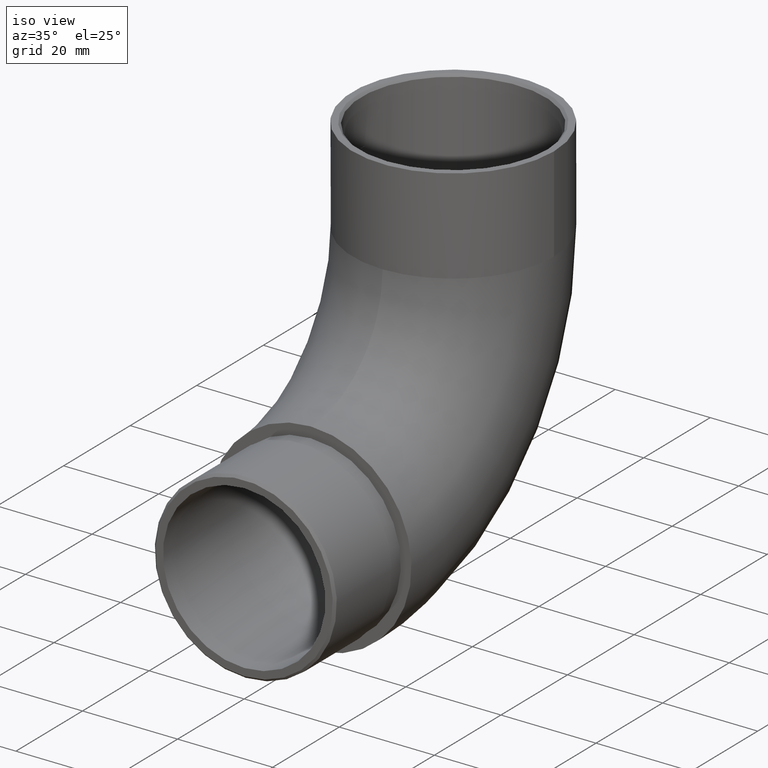
[diagram: clean part render]
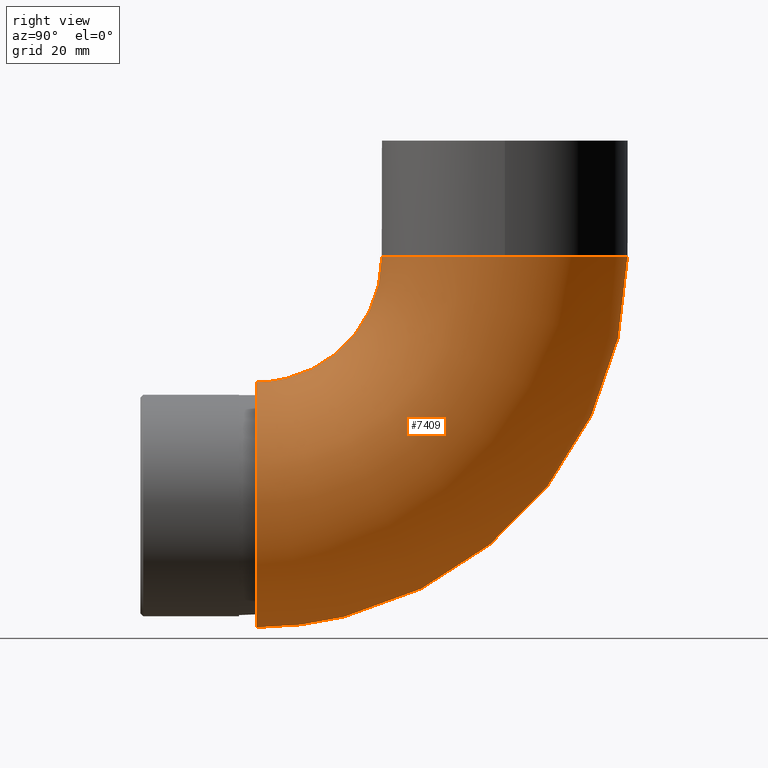
[diagram: tour spotlight — one face highlighted and labeled with its STEP entity id]
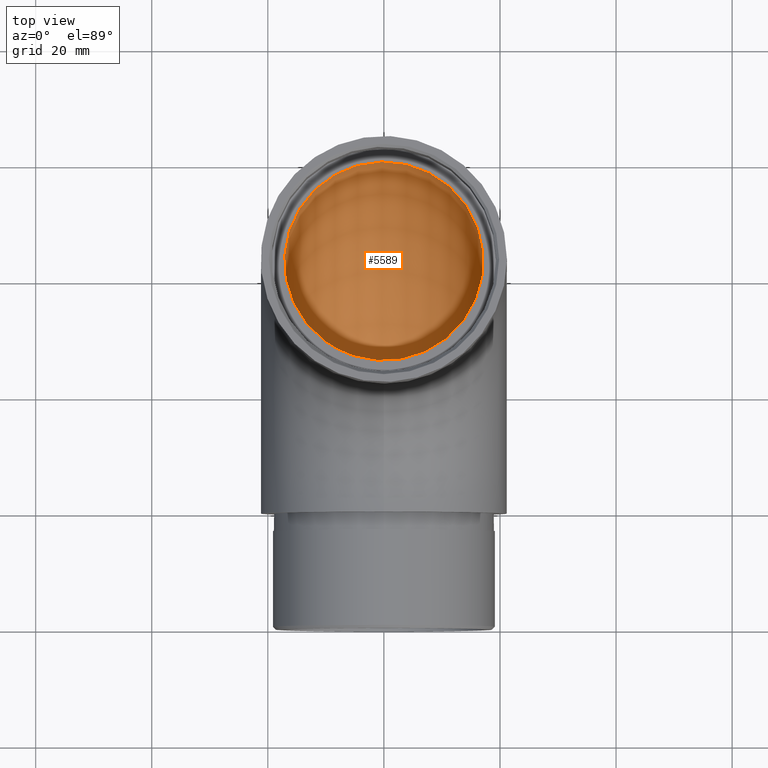
[diagram: tour spotlight — one face highlighted and labeled with its STEP entity id]
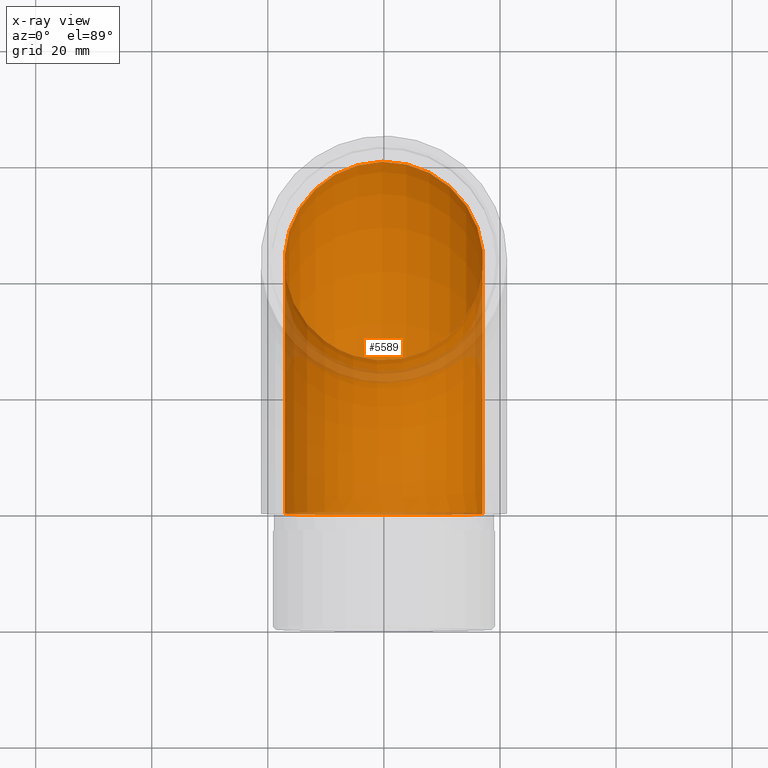
[diagram: x-ray of the same camera — body ghosted, this tour face saturated]
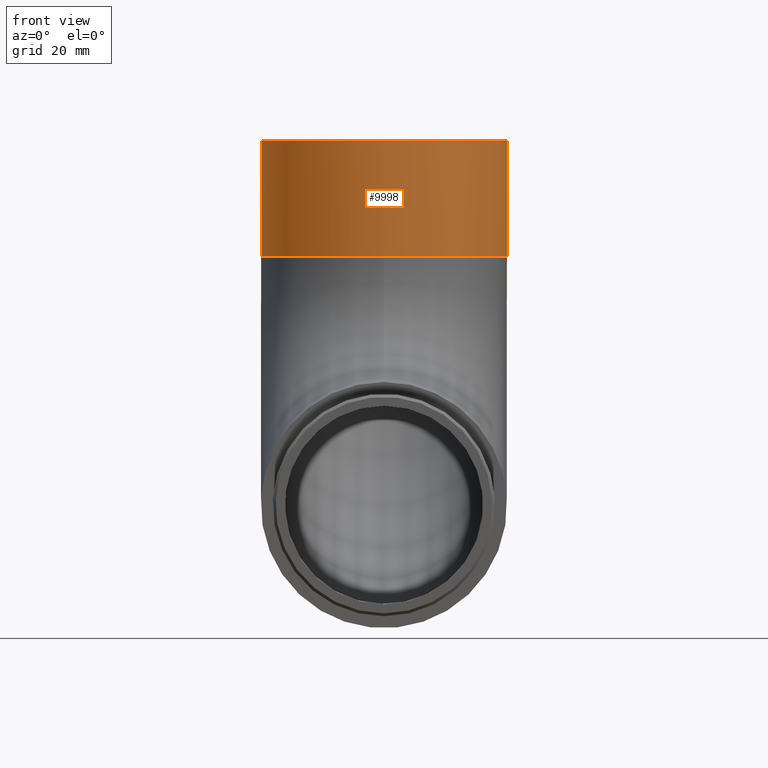
[diagram: tour spotlight — one face highlighted and labeled with its STEP entity id]
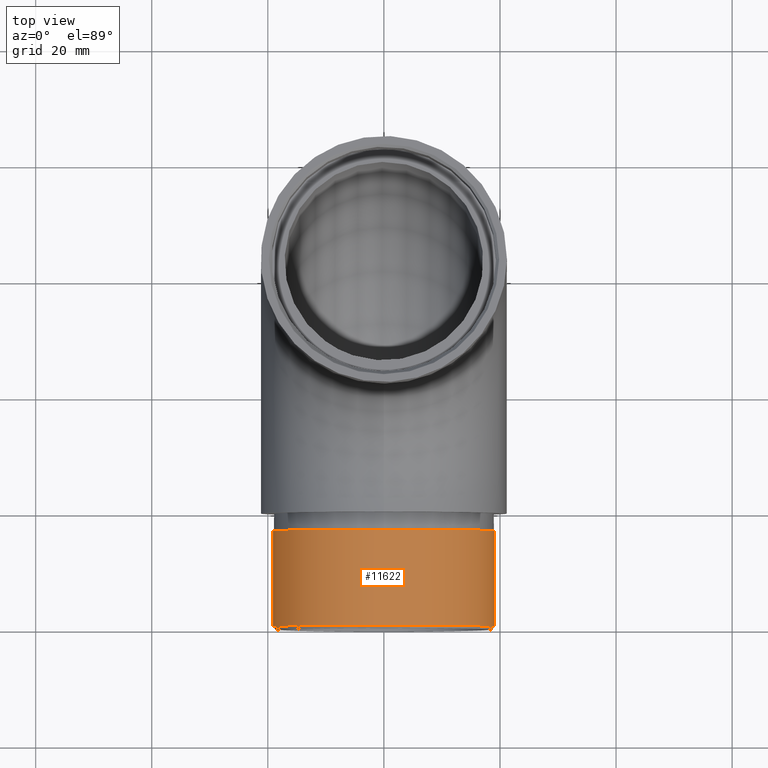
[diagram: tour spotlight — one face highlighted and labeled with its STEP entity id]
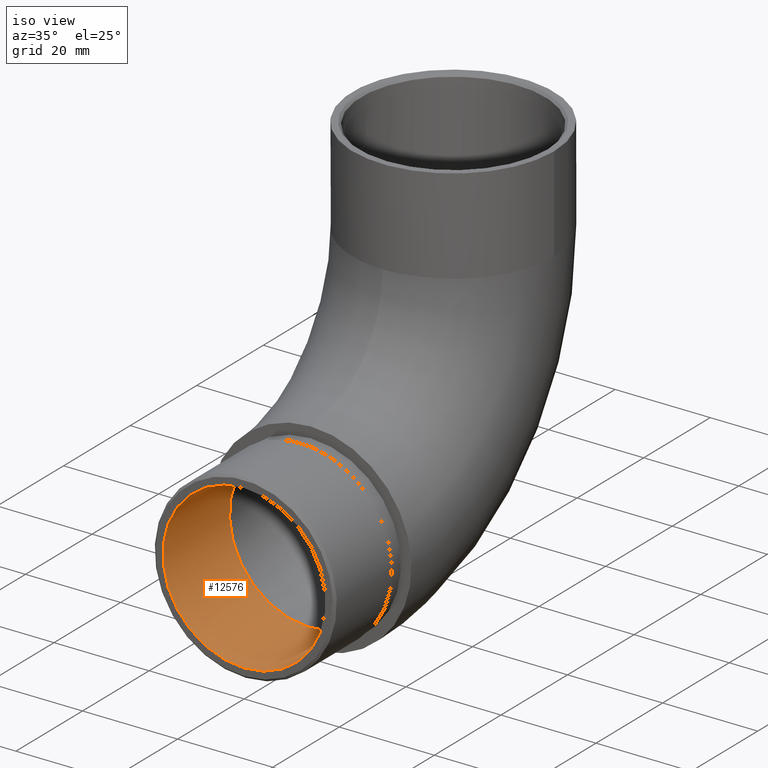
[diagram: tour spotlight — one face highlighted and labeled with its STEP entity id]
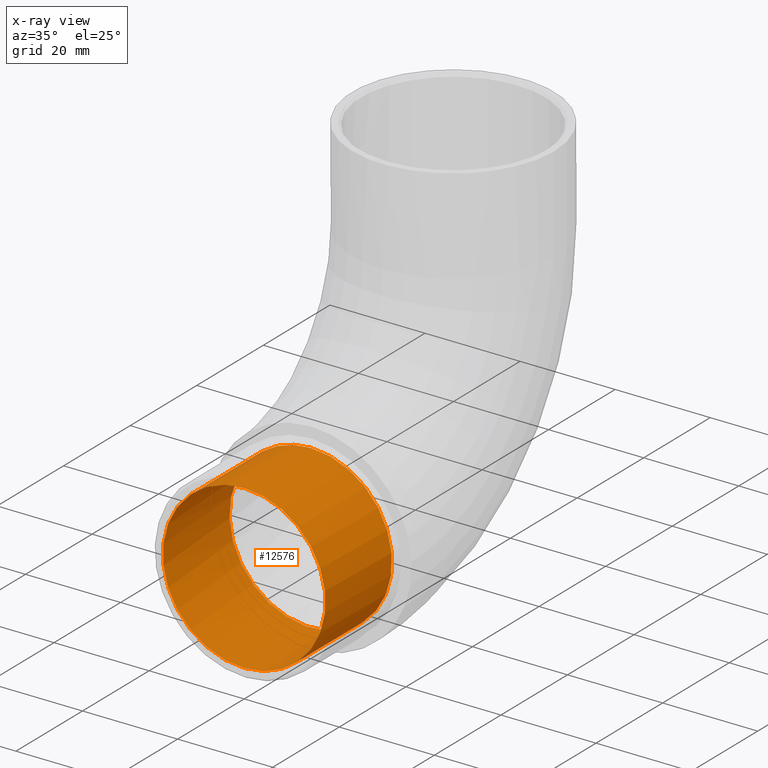
[diagram: x-ray of the same camera — body ghosted, this tour face saturated]
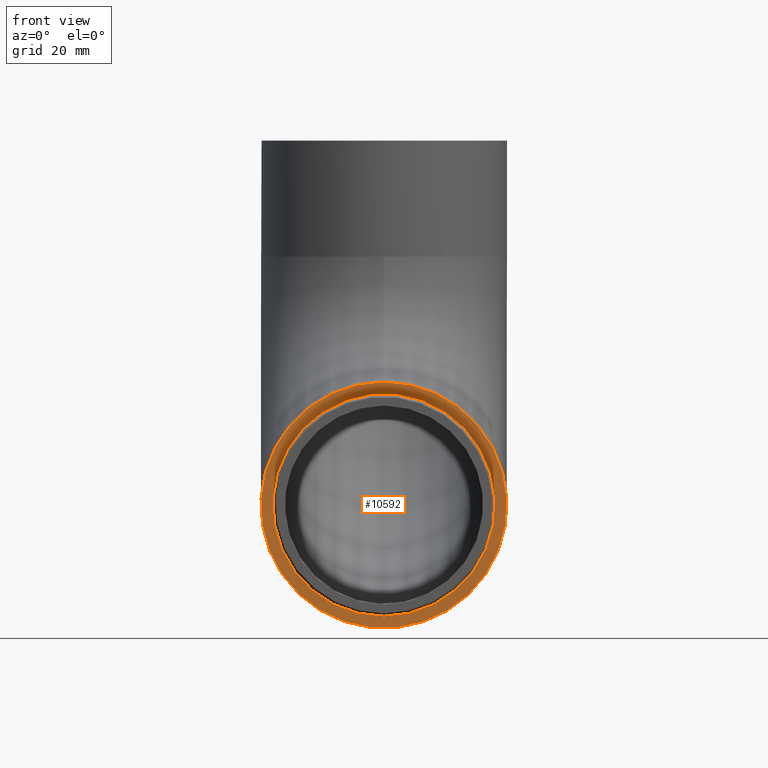
[diagram: tour spotlight — one face highlighted and labeled with its STEP entity id]
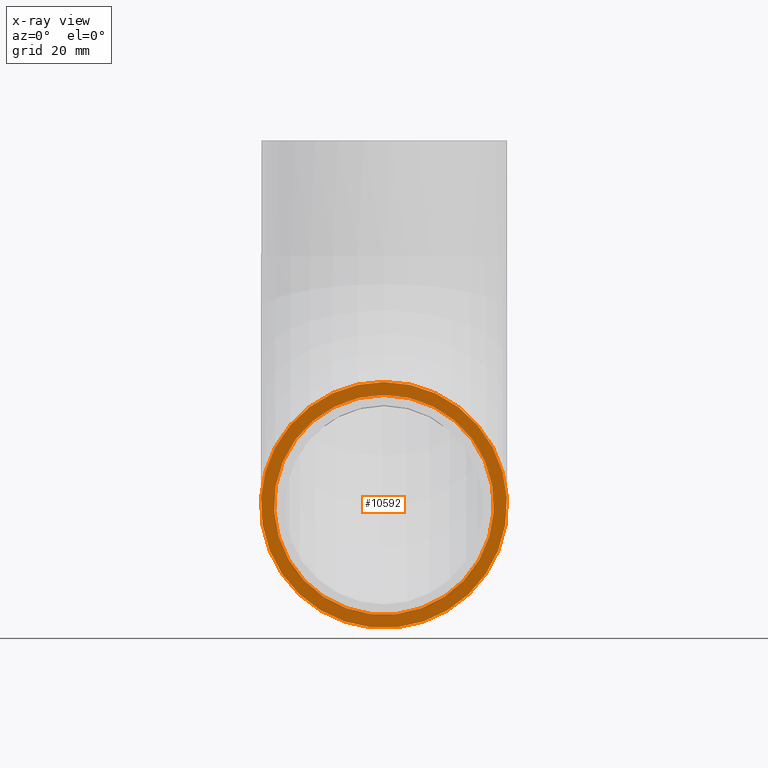
[diagram: x-ray of the same camera — body ghosted, this tour face saturated]
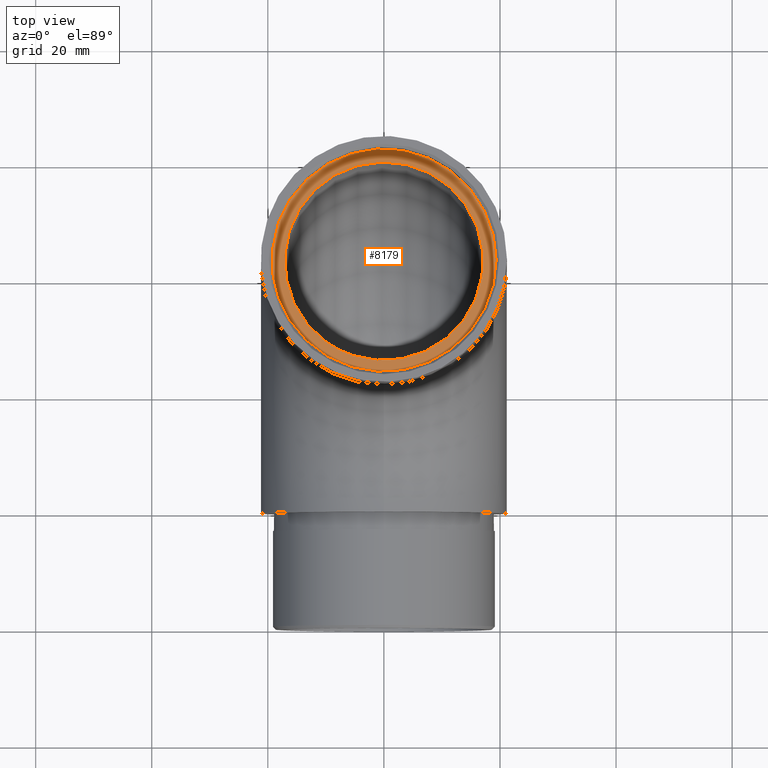
[diagram: tour spotlight — one face highlighted and labeled with its STEP entity id]
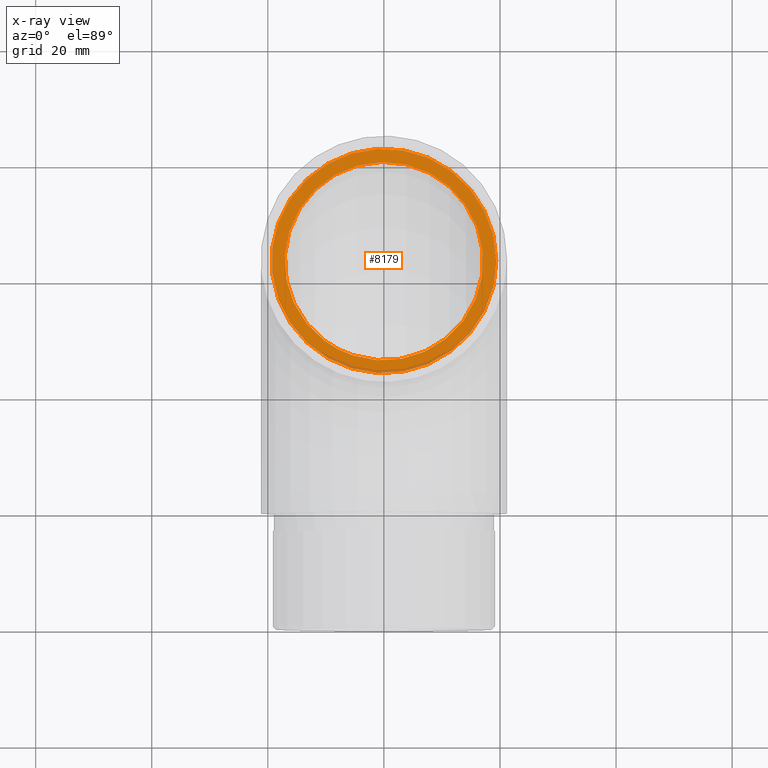
[diagram: x-ray of the same camera — body ghosted, this tour face saturated]
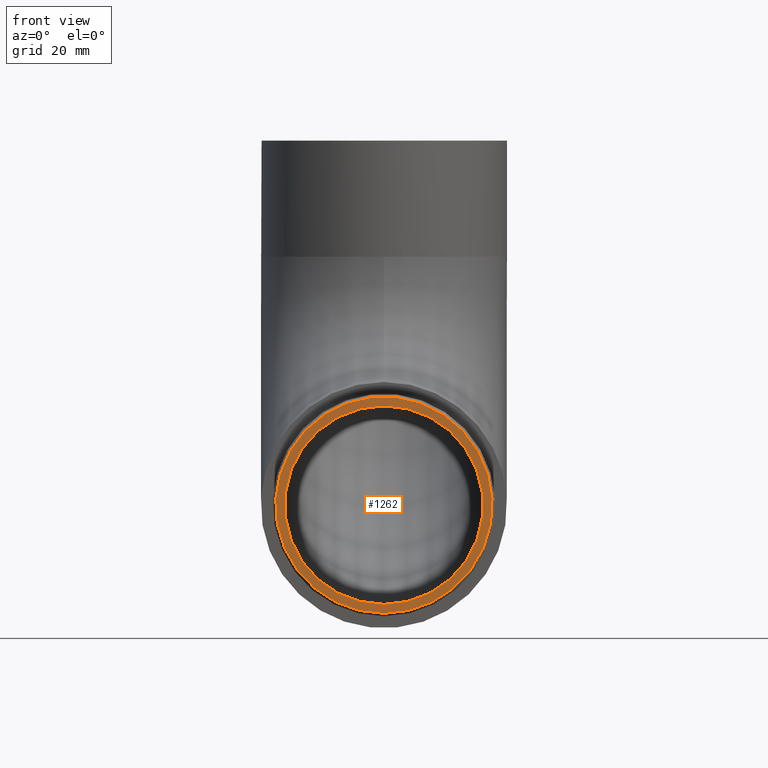
[diagram: tour spotlight — one face highlighted and labeled with its STEP entity id]
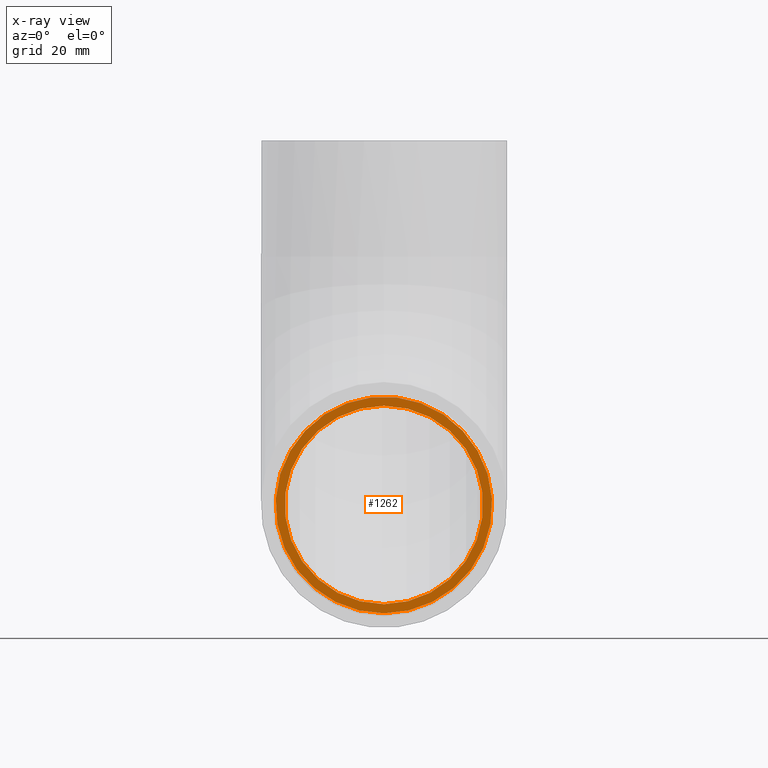
[diagram: x-ray of the same camera — body ghosted, this tour face saturated]
A machine part: a face-by-face anatomy tour. The part has 239 B-rep faces; the first image is the clean iso view, then the 8 largest visible faces are spotlighted one at a time (largest first), each with its STEP entity span.

Face 1 — right view, entity #7409. In plain terms, the highlighted toroidal blend (fillet) surface has major radius 42.8 mm and minor (blend) radius 21.2 mm.
Definition (entity closure, byte-faithful):
#615 = AXIS2_PLACEMENT_3D ( 'NONE', #7112, #1117, #3178 ) ;
#1117 = DIRECTION ( 'NONE',  ( 0.0000000000000000000, 6.123233995736766000E-017, 1.000000000000000000 ) ) ;
#3170 = CARTESIAN_POINT ( 'NONE',  ( 0.0000000000000000000, 0.0000000000000000000, 0.0000000000000000000 ) ) ;
#3178 = DIRECTION ( 'NONE',  ( 0.0000000000000000000, -1.000000000000000000, 0.0000000000000000000 ) ) ;
#3382 = ORIENTED_EDGE ( 'NONE', *, *, #9033, .F. ) ;
#3596 = FACE_OUTER_BOUND ( 'NONE', #9342, .T. ) ;
#3790 = CIRCLE ( 'NONE', #615, 21.19999999999999900 ) ;
#4497 = VERTEX_POINT ( 'NONE', #6753 ) ;
#4787 = VERTEX_POINT ( 'NONE', #7757 ) ;
#4940 = FACE_OUTER_BOUND ( 'NONE', #8236, .T. ) ;
#6638 = TOROIDAL_SURFACE ( 'NONE', #11902, 42.79999999999999000, 21.19999999999999900 ) ;
#6705 = DIRECTION ( 'NONE',  ( 0.0000000000000000000, 0.0000000000000000000, 1.000000000000000000 ) ) ;
#6753 = CARTESIAN_POINT ( 'NONE',  ( 0.0000000000000000000, 0.0000000000000000000, 21.19999999999999900 ) ) ;
#6868 = DIRECTION ( 'NONE',  ( -1.000000000000000000, -0.0000000000000000000, 0.0000000000000000000 ) ) ;
#7112 = CARTESIAN_POINT ( 'NONE',  ( 0.0000000000000000000, 42.79999999999998300, 42.79999999999999000 ) ) ;
#7409 = ADVANCED_FACE ( 'NONE', ( #3596, #4940 ), #6638, .T. ) ;
#7757 = CARTESIAN_POINT ( 'NONE',  ( 0.0000000000000000000, 21.59999999999998400, 42.79999999999999000 ) ) ;
#8015 = DIRECTION ( 'NONE',  ( 0.0000000000000000000, 0.0000000000000000000, 1.000000000000000000 ) ) ;
#8236 = EDGE_LOOP ( 'NONE', ( #9355 ) ) ;
#9033 = EDGE_CURVE ( 'NONE', #4787, #4787, #3790, .T. ) ;
#9342 = EDGE_LOOP ( 'NONE', ( #3382 ) ) ;
#9355 = ORIENTED_EDGE ( 'NONE', *, *, #11268, .T. ) ;
#9747 = CARTESIAN_POINT ( 'NONE',  ( 0.0000000000000000000, -6.938893903907228400E-015, 42.79999999999999000 ) ) ;
#10954 = DIRECTION ( 'NONE',  ( 0.0000000000000000000, 1.000000000000000000, 0.0000000000000000000 ) ) ;
#11268 = EDGE_CURVE ( 'NONE', #4497, #4497, #11884, .T. ) ;
#11384 = AXIS2_PLACEMENT_3D ( 'NONE', #3170, #10954, #8015 ) ;
#11884 = CIRCLE ( 'NONE', #11384, 21.19999999999999900 ) ;
#11902 = AXIS2_PLACEMENT_3D ( 'NONE', #9747, #6868, #6705 ) ;

Face 2 — top view, entity #5589. An x-ray twin of the same camera follows (body ghosted, this face saturated) — the face is partly hidden behind the body. In plain terms, the highlighted toroidal blend (fillet) surface has major radius 42.8 mm and minor (blend) radius 17.1 mm.
Definition (entity closure, byte-faithful):
#304 = CARTESIAN_POINT ( 'NONE',  ( -17.05264189703666100, 44.17913070528873500, 41.79999999999999700 ) ) ;
#465 = CARTESIAN_POINT ( 'NONE',  ( 0.0000000000000000000, -6.938893903907228400E-015, 42.79999999999999000 ) ) ;
#730 = CARTESIAN_POINT ( 'NONE',  ( -1.939324393462667800, 25.78169664073187300, 41.79999999999999700 ) ) ;
#762 = CARTESIAN_POINT ( 'NONE',  ( 3.076623255830798400, 25.95052648726656500, 41.79999999999999000 ) ) ;
#804 = CARTESIAN_POINT ( 'NONE',  ( 13.39755971925428000, 53.43155838624559100, 41.79999999999999000 ) ) ;
#813 = CARTESIAN_POINT ( 'NONE',  ( 0.0000000000000000000, -6.938893903907228400E-015, 0.0000000000000000000 ) ) ;
#831 = EDGE_CURVE ( 'NONE', #10209, #10209, #11827, .T. ) ;
#847 = CARTESIAN_POINT ( 'NONE',  ( 8.298876368323741200, 57.75319937297763300, 41.79999999999999700 ) ) ;
#888 = CARTESIAN_POINT ( 'NONE',  ( 17.10698296123488800, 42.51637236976363000, 41.79999999999999000 ) ) ;
#1215 = ORIENTED_EDGE ( 'NONE', *, *, #7448, .F. ) ;
#1326 = CARTESIAN_POINT ( 'NONE',  ( -11.91946009701339200, 30.47193164331068600, 41.80000000000002600 ) ) ;
#1372 = CARTESIAN_POINT ( 'NONE',  ( -16.44980627959026600, 38.08245653052561200, 41.79999999999998300 ) ) ;
#1412 = CARTESIAN_POINT ( 'NONE',  ( -15.70074056788025100, 49.58796027980785900, 41.80000000000000400 ) ) ;
#1581 = CARTESIAN_POINT ( 'NONE',  ( -8.323544477860734100, 57.73932764049581600, 41.79999999999998300 ) ) ;
#1625 = CARTESIAN_POINT ( 'NONE',  ( -0.2860721304825738500, 59.89838162920462800, 41.79999999999998300 ) ) ;
#1708 = CARTESIAN_POINT ( 'NONE',  ( 16.99482747454200300, 44.76279222112004400, 41.80000000000000400 ) ) ;
#1759 = CARTESIAN_POINT ( 'NONE',  ( -3.595755427286092300, 26.05386945012490700, 41.79999999999999700 ) ) ;
#1807 = CARTESIAN_POINT ( 'NONE',  ( 1.420086824729955600, 25.70308083228214700, 41.79999999999999700 ) ) ;
#1848 = CARTESIAN_POINT ( 'NONE',  ( -6.262911457302260800, 26.85976551134663400, 41.79999999999999000 ) ) ;
#1886 = CARTESIAN_POINT ( 'NONE',  ( 1.383860258400890100, 59.84465810377268700, 41.79999999999999000 ) ) ;
#2384 = CARTESIAN_POINT ( 'NONE',  ( -15.24435161849914300, 34.95783437061674400, 41.79999999999998300 ) ) ;
#2726 = CARTESIAN_POINT ( 'NONE',  ( 17.10673304753673200, 43.08202542640398000, 41.79999999999999000 ) ) ;
#2772 = CARTESIAN_POINT ( 'NONE',  ( 11.08612070256099000, 29.75177792853964900, 41.79999999999999000 ) ) ;
#2815 = CARTESIAN_POINT ( 'NONE',  ( -5.210078327269079600, 26.48458497670187800, 41.80000000000000400 ) ) ;
#2858 = CARTESIAN_POINT ( 'NONE',  ( -10.18595080826849200, 29.04756693942499300, 41.79999999999999000 ) ) ;
#2901 = CARTESIAN_POINT ( 'NONE',  ( 11.07830959019983500, 55.86494613797342600, 41.79999999999999000 ) ) ;
#3139 = FACE_OUTER_BOUND ( 'NONE', #9974, .T. ) ;
#3383 = CARTESIAN_POINT ( 'NONE',  ( -16.83307037191739800, 45.85029813445071800, 41.79999999999999700 ) ) ;
#3459 = CARTESIAN_POINT ( 'NONE',  ( -14.38033084818331800, 33.51524070831872100, 41.80000000000001100 ) ) ;
#3515 = CARTESIAN_POINT ( 'NONE',  ( -7.823842111771980100, 58.00693623043978400, 41.79999999999996900 ) ) ;
#3713 = CARTESIAN_POINT ( 'NONE',  ( 14.41677520313651300, 33.52025672894632200, 41.79999999999999000 ) ) ;
#3757 = CARTESIAN_POINT ( 'NONE',  ( 13.05377891763034800, 31.72436513799831200, 41.80000000000000400 ) ) ;
#3808 = CARTESIAN_POINT ( 'NONE',  ( 16.29338278801290600, 37.56638986426304400, 41.79999999999998300 ) ) ;
#3879 = CARTESIAN_POINT ( 'NONE',  ( 17.05043655735480400, 44.20613614537538200, 41.79999999999999000 ) ) ;
#3946 = CARTESIAN_POINT ( 'NONE',  ( 0.0000000000000000000, -6.938893903907228400E-015, 17.10000000000000100 ) ) ;
#4270 = DIRECTION ( 'NONE',  ( 0.0000000000000000000, 0.0000000000000000000, 1.000000000000000000 ) ) ;
#4325 = AXIS2_PLACEMENT_3D ( 'NONE', #465, #6396, #4270 ) ;
#4643 = CARTESIAN_POINT ( 'NONE',  ( -13.41041718557307200, 53.41521722309369800, 41.79999999999999700 ) ) ;
#4686 = CARTESIAN_POINT ( 'NONE',  ( 0.2710666874248562300, 59.89857649902592100, 41.79999999999999700 ) ) ;
#4724 = CARTESIAN_POINT ( 'NONE',  ( 0.3072793242046392700, 25.64645295909191300, 41.79999999999999700 ) ) ;
#4764 = CARTESIAN_POINT ( 'NONE',  ( -8.314534454431031600, 27.79697626714725800, 41.79999999999999000 ) ) ;
#4800 = CARTESIAN_POINT ( 'NONE',  ( 11.90495793777843800, 55.11749489903714000, 41.80000000000000400 ) ) ;
#4848 = CARTESIAN_POINT ( 'NONE',  ( 13.41104638621493300, 32.16035924298099500, 41.80000000000001100 ) ) ;
#4959 = TOROIDAL_SURFACE ( 'NONE', #4325, 42.79999999999999000, 17.10000000000000100 ) ;
#5370 = CARTESIAN_POINT ( 'NONE',  ( -16.29278027691190200, 48.01147779507577000, 41.80000000000000400 ) ) ;
#5455 = CARTESIAN_POINT ( 'NONE',  ( -1.961603134415663300, 59.78812493188739600, 41.79999999999998300 ) ) ;
#5589 = ADVANCED_FACE ( 'NONE', ( #3139, #7588 ), #4959, .F. ) ;
#5608 = CARTESIAN_POINT ( 'NONE',  ( -3.048349938071123000, 25.94530527039379200, 41.79999999999997600 ) ) ;
#5654 = CARTESIAN_POINT ( 'NONE',  ( 10.65540131501029500, 29.39694423852511200, 41.79999999999999700 ) ) ;
#5697 = CARTESIAN_POINT ( 'NONE',  ( 14.06512750159208200, 52.53193285631078200, 41.79999999999999000 ) ) ;
#5748 = CARTESIAN_POINT ( 'NONE',  ( 3.049309708675640400, 59.62688511882544900, 41.79999999999998300 ) ) ;
#5790 = CARTESIAN_POINT ( 'NONE',  ( 11.91044534567425500, 30.50105050709041500, 41.80000000000000400 ) ) ;
#6184 = CARTESIAN_POINT ( 'NONE',  ( -14.06529675597638700, 33.04360557183174800, 41.79999999999999700 ) ) ;
#6312 = CARTESIAN_POINT ( 'NONE',  ( -17.13439252982404400, 42.49443395476669100, 41.80000000000001800 ) ) ;
#6378 = AXIS2_PLACEMENT_3D ( 'NONE', #813, #6827, #10731 ) ;
#6396 = DIRECTION ( 'NONE',  ( -1.000000000000000000, -0.0000000000000000000, 0.0000000000000000000 ) ) ;
#6439 = CARTESIAN_POINT ( 'NONE',  ( -1.401845999209719600, 59.84323847400222700, 41.79999999999998300 ) ) ;
#6483 = CARTESIAN_POINT ( 'NONE',  ( -14.40591667209775800, 52.07066059631797100, 41.80000000000000400 ) ) ;
#6606 = CARTESIAN_POINT ( 'NONE',  ( 9.285020335985800300, 28.41183493239484300, 41.79999999999997600 ) ) ;
#6652 = CARTESIAN_POINT ( 'NONE',  ( 15.91541273838642600, 36.50733274303048100, 41.79999999999999700 ) ) ;
#6698 = CARTESIAN_POINT ( 'NONE',  ( 13.03777274474736800, 53.86961989045300200, 41.80000000000000400 ) ) ;
#6736 = CARTESIAN_POINT ( 'NONE',  ( 15.70168238348807700, 35.99070141017832500, 41.80000000000000400 ) ) ;
#6776 = CARTESIAN_POINT ( 'NONE',  ( 16.47723244894449800, 47.49897293246129200, 41.79999999999999000 ) ) ;
#6827 = DIRECTION ( 'NONE',  ( 0.0000000000000000000, 1.000000000000000000, 0.0000000000000000000 ) ) ;
#7264 = CIRCLE ( 'NONE', #6378, 17.10000000000000100 ) ;
#7267 = CARTESIAN_POINT ( 'NONE',  ( -13.04185889587582600, 31.71038966901358000, 41.80000000000000400 ) ) ;
#7312 = CARTESIAN_POINT ( 'NONE',  ( -15.91672946699788200, 49.06520362790235600, 41.79999999999998300 ) ) ;
#7448 = EDGE_CURVE ( 'NONE', #9741, #9741, #7264, .T. ) ;
#7482 = CARTESIAN_POINT ( 'NONE',  ( -14.97943365036755900, 51.11446756610209300, 41.79999999999999000 ) ) ;
#7523 = CARTESIAN_POINT ( 'NONE',  ( -4.718215774660855300, 59.26549806121502700, 41.79999999999999700 ) ) ;
#7588 = FACE_OUTER_BOUND ( 'NONE', #11761, .T. ) ;
#7608 = CARTESIAN_POINT ( 'NONE',  ( 9.733281017205865000, 56.86190975162117000, 41.79999999999996900 ) ) ;
#7657 = CARTESIAN_POINT ( 'NONE',  ( 9.756134495443049600, 28.72764388664683500, 41.79999999999999700 ) ) ;
#7668 = ORIENTED_EDGE ( 'NONE', *, *, #831, .F. ) ;
#7690 = CARTESIAN_POINT ( 'NONE',  ( 5.258710593554345000, 26.50024314779582500, 41.79999999999999700 ) ) ;
#7736 = CARTESIAN_POINT ( 'NONE',  ( 4.722334812000909200, 26.33630656492832900, 41.80000000000000400 ) ) ;
#7779 = CARTESIAN_POINT ( 'NONE',  ( 14.98817281971817800, 34.47849970147687100, 41.79999999999999000 ) ) ;
#8176 = CARTESIAN_POINT ( 'NONE',  ( -16.61552267156129000, 46.94422977893219700, 41.79999999999998300 ) ) ;
#8223 = CARTESIAN_POINT ( 'NONE',  ( -16.28581817462418300, 37.54319574746597300, 41.79999999999999000 ) ) ;
#8269 = CARTESIAN_POINT ( 'NONE',  ( -17.07849823653624500, 41.38115444836694200, 41.79999999999997600 ) ) ;
#8401 = CARTESIAN_POINT ( 'NONE',  ( -12.30004552262671100, 54.68354615217663200, 41.79999999999996900 ) ) ;
#8479 = CARTESIAN_POINT ( 'NONE',  ( -10.65815478847117600, 56.20990407506331400, 41.79999999999999000 ) ) ;
#8610 = CARTESIAN_POINT ( 'NONE',  ( 17.02549883081329400, 40.84007427483655300, 41.79999999999997600 ) ) ;
#8656 = CARTESIAN_POINT ( 'NONE',  ( 3.605748242004071200, 59.51652756318191000, 41.80000000000001100 ) ) ;
#8699 = CARTESIAN_POINT ( 'NONE',  ( 5.238213528965857800, 59.10808731920878500, 41.79999999999998300 ) ) ;
#8740 = CARTESIAN_POINT ( 'NONE',  ( 7.841570367191114800, 27.54441445988343100, 41.79999999999999000 ) ) ;
#8776 = CARTESIAN_POINT ( 'NONE',  ( 7.802604617578886300, 58.01771921270749700, 41.80000000000001100 ) ) ;
#9256 = CARTESIAN_POINT ( 'NONE',  ( -16.99720957785726900, 44.74281892062965200, 41.79999999999999700 ) ) ;
#9303 = CARTESIAN_POINT ( 'NONE',  ( -16.83290606843761200, 39.72566987684113800, 41.79999999999999700 ) ) ;
#9395 = CARTESIAN_POINT ( 'NONE',  ( -11.90069995312563800, 55.08303258676705400, 41.80000000000000400 ) ) ;
#9598 = CARTESIAN_POINT ( 'NONE',  ( 15.21147373333736200, 50.62170117726950000, 41.79999999999999000 ) ) ;
#9649 = CARTESIAN_POINT ( 'NONE',  ( 1.939515056152372400, 59.79054647383088600, 41.79999999999997600 ) ) ;
#9697 = CARTESIAN_POINT ( 'NONE',  ( 9.267304466422999100, 57.17338172182977700, 41.79999999999999000 ) ) ;
#9741 = VERTEX_POINT ( 'NONE', #3946 ) ;
#9776 = CARTESIAN_POINT ( 'NONE',  ( 14.68509536123800000, 51.60432550764242200, 41.79999999999998300 ) ) ;
#9974 = EDGE_LOOP ( 'NONE', ( #1215 ) ) ;
#10209 = VERTEX_POINT ( 'NONE', #10613 ) ;
#10341 = CARTESIAN_POINT ( 'NONE',  ( -15.72038278653272900, 35.96497786748657400, 41.80000000000001800 ) ) ;
#10386 = CARTESIAN_POINT ( 'NONE',  ( -3.636100083253902300, 59.53862133456365100, 41.79999999999998300 ) ) ;
#10469 = CARTESIAN_POINT ( 'NONE',  ( -6.808265719874707000, 58.48772988232963900, 41.79999999999998300 ) ) ;
#10509 = CARTESIAN_POINT ( 'NONE',  ( -9.763995154073507300, 56.87414872654924400, 41.79999999999999000 ) ) ;
#10596 = CARTESIAN_POINT ( 'NONE',  ( 16.86310555272615000, 39.73811895711798300, 41.79999999999999700 ) ) ;
#10613 = CARTESIAN_POINT ( 'NONE',  ( -10.18595080826849000, 29.04756693942498600, 41.79999999999999000 ) ) ;
#10633 = CARTESIAN_POINT ( 'NONE',  ( 3.626709023305991300, 26.06029204547569800, 41.79999999999997600 ) ) ;
#10676 = CARTESIAN_POINT ( 'NONE',  ( -6.783730349711595100, 27.07455812793509900, 41.80000000000001100 ) ) ;
#10724 = CARTESIAN_POINT ( 'NONE',  ( 16.74789405365527300, 46.41701016575739700, 41.80000000000002600 ) ) ;
#10731 = DIRECTION ( 'NONE',  ( 0.0000000000000000000, 0.0000000000000000000, 1.000000000000000000 ) ) ;
#10760 = CARTESIAN_POINT ( 'NONE',  ( 16.45711840290390200, 38.10859310645742000, 41.79999999999996900 ) ) ;
#11235 = CARTESIAN_POINT ( 'NONE',  ( -13.39637759561802500, 32.14199018986919800, 41.80000000000000400 ) ) ;
#11284 = CARTESIAN_POINT ( 'NONE',  ( -10.18595080826849200, 29.04756693942499300, 41.79999999999999000 ) ) ;
#11453 = CARTESIAN_POINT ( 'NONE',  ( -6.291975491266044600, 58.70159170784793200, 41.79999999999999000 ) ) ;
#11536 = CARTESIAN_POINT ( 'NONE',  ( -13.05588439545392800, 53.84833958442740000, 41.80000000000001100 ) ) ;
#11582 = CARTESIAN_POINT ( 'NONE',  ( 15.69050928536204600, 49.61124616703939700, 41.79999999999999700 ) ) ;
#11624 = CARTESIAN_POINT ( 'NONE',  ( -4.676619774630410100, 26.32350872817241700, 41.79999999999998300 ) ) ;
#11668 = CARTESIAN_POINT ( 'NONE',  ( 15.90720127617662200, 49.08966417568575500, 41.79999999999997600 ) ) ;
#11701 = CARTESIAN_POINT ( 'NONE',  ( 12.30404976892178600, 30.89549028380587000, 41.79999999999999700 ) ) ;
#11761 = EDGE_LOOP ( 'NONE', ( #7668 ) ) ;
#11827 = B_SPLINE_CURVE_WITH_KNOTS ( 'NONE', 3,
 ( #11284, #12267, #1326, #7267, #11235, #6184, #3459, #2384, #10341, #8223, #1372, #12223, #9303, #8269, #6312, #304, #9256, #3383, #8176, #5370, #7312, #1412, #7482, #6483, #4643, #11536, #8401, #9395, #8479, #10509, #1581, #3515, #10469, #11453, #7523, #10386, #5455, #6439, #1625, #4686, #1886, #9649, #5748, #8656, #8699, #12596, #8776, #847, #9697, #7608, #2901, #4800, #6698, #804, #5697, #9776, #9598, #11582, #11668, #6776, #10724, #1708, #3879, #2726, #888, #8610, #10596, #10760, #3808, #6652, #6736, #7779, #3713, #4848, #3757, #11701, #5790, #2772, #5654, #7657, #6606, #8740, #12555, #7690, #7736, #10633, #762, #1807, #4724, #12684, #730, #5608, #1759, #11624, #2815, #1848, #10676, #4764, #12642, #2858 ),
 .UNSPECIFIED., .T., .F.,
 ( 4, 2, 2, 2, 2, 2, 2, 2, 2, 1, 2, 2, 2, 2, 2, 2, 2, 2, 2, 2, 2, 2, 2, 2, 2, 2, 2, 2, 1, 2, 2, 2, 2, 2, 2, 2, 2, 2, 2, 2, 2, 2, 2, 2, 2, 2, 2, 2, 2, 2, 4 ),
 ( 0.0000000000000000000, 0.003341530460848003500, 0.005012295691272006600, 0.006683060921696009700, 0.01002459138254401300, 0.01169535661296800500, 0.01336612184339199700, 0.01670765230423999800, 0.01837841753466400900, 0.02004918276508801900, 0.02171994799551202700, 0.02339071322593604100, 0.02673224368678406300, 0.02840300891720808100, 0.03007377414763208800, 0.03341530460848012700, 0.03508606983890415900, 0.03675683506932817700, 0.04009836553017623300, 0.04176913076060025800, 0.04343989599102428300, 0.04511066122144830700, 0.04678142645187233200, 0.05012295691272038900, 0.05179372214314442000, 0.05346448737356844500, 0.05680601783441650100, 0.05847678306484053300, 0.06014754829526457200, 0.06181831352568861000, 0.06348907875611264900, 0.06683060921696069900, 0.06850137444738473000, 0.07017213967780877600, 0.07351367013865682500, 0.07518443536908087100, 0.07685520059950490300, 0.08019673106035296600, 0.08186749629077699800, 0.08353826152120102900, 0.08520902675162504700, 0.08687979198204906500, 0.09022132244289712800, 0.09189208767332116000, 0.09356285290374517800, 0.09690438336459322700, 0.09857514859501724500, 0.1002459138254412600, 0.1019166790558652900, 0.1035874442862893100, 0.1069289747471373500 ),
 .UNSPECIFIED. ) ;
#12223 = CARTESIAN_POINT ( 'NONE',  ( -16.72389094639741500, 39.17626465637491200, 41.79999999999999000 ) ) ;
#12267 = CARTESIAN_POINT ( 'NONE',  ( -11.09331719935476500, 29.72086240374640600, 41.79999999999999700 ) ) ;
#12555 = CARTESIAN_POINT ( 'NONE',  ( 6.834728407320033800, 27.06711622235099700, 41.80000000000001800 ) ) ;
#12596 = CARTESIAN_POINT ( 'NONE',  ( 6.287240455673543900, 58.73289496455109300, 41.80000000000002600 ) ) ;
#12642 = CARTESIAN_POINT ( 'NONE',  ( -9.278584417182212700, 28.37427147510357300, 41.79999999999999000 ) ) ;
#12684 = CARTESIAN_POINT ( 'NONE',  ( -1.374815208625403100, 25.72668769006243400, 41.79999999999997600 ) ) ;

Face 3 — front view, entity #9998. In plain terms, the highlighted cylindrical surface (bore or boss wall) has radius 21.2 mm, axis along (0, 0, 1).
Definition (entity closure, byte-faithful):
#357 = FACE_OUTER_BOUND ( 'NONE', #2245, .T. ) ;
#404 = AXIS2_PLACEMENT_3D ( 'NONE', #10755, #6979, #1114 ) ;
#615 = AXIS2_PLACEMENT_3D ( 'NONE', #7112, #1117, #3178 ) ;
#1074 = DIRECTION ( 'NONE',  ( 0.0000000000000000000, 0.0000000000000000000, 1.000000000000000000 ) ) ;
#1114 = DIRECTION ( 'NONE',  ( 1.000000000000000000, 0.0000000000000000000, 0.0000000000000000000 ) ) ;
#1117 = DIRECTION ( 'NONE',  ( 0.0000000000000000000, 6.123233995736766000E-017, 1.000000000000000000 ) ) ;
#1815 = EDGE_LOOP ( 'NONE', ( #10468 ) ) ;
#2152 = AXIS2_PLACEMENT_3D ( 'NONE', #6025, #1074, #10157 ) ;
#2245 = EDGE_LOOP ( 'NONE', ( #3430 ) ) ;
#3178 = DIRECTION ( 'NONE',  ( 0.0000000000000000000, -1.000000000000000000, 0.0000000000000000000 ) ) ;
#3430 = ORIENTED_EDGE ( 'NONE', *, *, #9033, .T. ) ;
#3790 = CIRCLE ( 'NONE', #615, 21.19999999999999900 ) ;
#4787 = VERTEX_POINT ( 'NONE', #7757 ) ;
#6025 = CARTESIAN_POINT ( 'NONE',  ( 0.0000000000000000000, 42.79999999999998300, 41.79999999999999000 ) ) ;
#6198 = CYLINDRICAL_SURFACE ( 'NONE', #2152, 21.20000000000000300 ) ;
#6979 = DIRECTION ( 'NONE',  ( 0.0000000000000000000, 0.0000000000000000000, 1.000000000000000000 ) ) ;
#7112 = CARTESIAN_POINT ( 'NONE',  ( 0.0000000000000000000, 42.79999999999998300, 42.79999999999999000 ) ) ;
#7757 = CARTESIAN_POINT ( 'NONE',  ( 0.0000000000000000000, 21.59999999999998400, 42.79999999999999000 ) ) ;
#8367 = FACE_OUTER_BOUND ( 'NONE', #1815, .T. ) ;
#9033 = EDGE_CURVE ( 'NONE', #4787, #4787, #3790, .T. ) ;
#9797 = CARTESIAN_POINT ( 'NONE',  ( 21.20000000000000300, 42.79999999999998300, 62.79999999999999700 ) ) ;
#9967 = EDGE_CURVE ( 'NONE', #11870, #11870, #11605, .T. ) ;
#9998 = ADVANCED_FACE ( 'NONE', ( #8367, #357 ), #6198, .T. ) ;
#10157 = DIRECTION ( 'NONE',  ( 1.000000000000000000, 0.0000000000000000000, 0.0000000000000000000 ) ) ;
#10468 = ORIENTED_EDGE ( 'NONE', *, *, #9967, .F. ) ;
#10755 = CARTESIAN_POINT ( 'NONE',  ( 0.0000000000000000000, 42.79999999999998300, 62.79999999999999700 ) ) ;
#11605 = CIRCLE ( 'NONE', #404, 21.20000000000000300 ) ;
#11870 = VERTEX_POINT ( 'NONE', #9797 ) ;

Face 4 — top view, entity #11622. In plain terms, the highlighted cylindrical surface (bore or boss wall) has radius 19.15 mm, axis along (-0, 1, 0).
Definition (entity closure, byte-faithful):
#281 = AXIS2_PLACEMENT_3D ( 'NONE', #9849, #1966, #5902 ) ;
#639 = FACE_OUTER_BOUND ( 'NONE', #2775, .T. ) ;
#905 = ORIENTED_EDGE ( 'NONE', *, *, #5881, .T. ) ;
#1872 = VERTEX_POINT ( 'NONE', #7917 ) ;
#1966 = DIRECTION ( 'NONE',  ( 0.0000000000000000000, 1.000000000000000000, 0.0000000000000000000 ) ) ;
#2775 = EDGE_LOOP ( 'NONE', ( #905 ) ) ;
#4865 = CARTESIAN_POINT ( 'NONE',  ( 0.0000000000000000000, -19.50000000000001400, -19.14999999999999900 ) ) ;
#4923 = AXIS2_PLACEMENT_3D ( 'NONE', #6962, #10774, #12052 ) ;
#4978 = ORIENTED_EDGE ( 'NONE', *, *, #10366, .T. ) ;
#5662 = AXIS2_PLACEMENT_3D ( 'NONE', #6841, #5848, #7008 ) ;
#5848 = DIRECTION ( 'NONE',  ( 0.0000000000000000000, -1.000000000000000000, 0.0000000000000000000 ) ) ;
#5881 = EDGE_CURVE ( 'NONE', #10355, #10355, #10538, .T. ) ;
#5902 = DIRECTION ( 'NONE',  ( 0.0000000000000000000, 0.0000000000000000000, -1.000000000000000000 ) ) ;
#6795 = CYLINDRICAL_SURFACE ( 'NONE', #4923, 19.14999999999999900 ) ;
#6841 = CARTESIAN_POINT ( 'NONE',  ( 0.0000000000000000000, -3.000000000000000000, 0.0000000000000000000 ) ) ;
#6962 = CARTESIAN_POINT ( 'NONE',  ( 0.0000000000000000000, -20.00000000000000000, 0.0000000000000000000 ) ) ;
#7008 = DIRECTION ( 'NONE',  ( 0.0000000000000000000, 0.0000000000000000000, -1.000000000000000000 ) ) ;
#7917 = CARTESIAN_POINT ( 'NONE',  ( 0.0000000000000000000, -3.000000000000000000, -19.14999999999999900 ) ) ;
#9514 = EDGE_LOOP ( 'NONE', ( #4978 ) ) ;
#9849 = CARTESIAN_POINT ( 'NONE',  ( 0.0000000000000000000, -19.50000000000001400, 0.0000000000000000000 ) ) ;
#10355 = VERTEX_POINT ( 'NONE', #4865 ) ;
#10366 = EDGE_CURVE ( 'NONE', #1872, #1872, #10682, .T. ) ;
#10538 = CIRCLE ( 'NONE', #281, 19.14999999999999900 ) ;
#10682 = CIRCLE ( 'NONE', #5662, 19.14999999999999900 ) ;
#10774 = DIRECTION ( 'NONE',  ( -0.0000000000000000000, 1.000000000000000000, 0.0000000000000000000 ) ) ;
#11285 = FACE_OUTER_BOUND ( 'NONE', #9514, .T. ) ;
#11622 = ADVANCED_FACE ( 'NONE', ( #639, #11285 ), #6795, .T. ) ;
#12052 = DIRECTION ( 'NONE',  ( 0.0000000000000000000, 0.0000000000000000000, 1.000000000000000000 ) ) ;

Face 5 — iso view, entity #12576. An x-ray twin of the same camera follows (body ghosted, this face saturated) — the face is partly hidden behind the body. In plain terms, the highlighted cylindrical surface (bore or boss wall) has radius 17.1 mm, axis along (-0, 1, -0).
Definition (entity closure, byte-faithful):
#180 = VERTEX_POINT ( 'NONE', #10776 ) ;
#379 = ORIENTED_EDGE ( 'NONE', *, *, #6793, .T. ) ;
#813 = CARTESIAN_POINT ( 'NONE',  ( 0.0000000000000000000, -6.938893903907228400E-015, 0.0000000000000000000 ) ) ;
#2948 = EDGE_LOOP ( 'NONE', ( #6623 ) ) ;
#3440 = DIRECTION ( 'NONE',  ( 0.0000000000000000000, 0.0000000000000000000, 1.000000000000000000 ) ) ;
#3740 = FACE_OUTER_BOUND ( 'NONE', #7474, .T. ) ;
#3946 = CARTESIAN_POINT ( 'NONE',  ( 0.0000000000000000000, -6.938893903907228400E-015, 17.10000000000000100 ) ) ;
#4055 = CARTESIAN_POINT ( 'NONE',  ( 0.0000000000000000000, -20.00000000000000000, 0.0000000000000000000 ) ) ;
#4347 = CYLINDRICAL_SURFACE ( 'NONE', #7578, 17.10000000000000100 ) ;
#4657 = AXIS2_PLACEMENT_3D ( 'NONE', #4055, #8089, #9911 ) ;
#5126 = CARTESIAN_POINT ( 'NONE',  ( 0.0000000000000000000, -3.000000000000000000, 0.0000000000000000000 ) ) ;
#6378 = AXIS2_PLACEMENT_3D ( 'NONE', #813, #6827, #10731 ) ;
#6623 = ORIENTED_EDGE ( 'NONE', *, *, #7448, .T. ) ;
#6777 = FACE_OUTER_BOUND ( 'NONE', #2948, .T. ) ;
#6793 = EDGE_CURVE ( 'NONE', #180, #180, #11878, .T. ) ;
#6827 = DIRECTION ( 'NONE',  ( 0.0000000000000000000, 1.000000000000000000, 0.0000000000000000000 ) ) ;
#7264 = CIRCLE ( 'NONE', #6378, 17.10000000000000100 ) ;
#7448 = EDGE_CURVE ( 'NONE', #9741, #9741, #7264, .T. ) ;
#7474 = EDGE_LOOP ( 'NONE', ( #379 ) ) ;
#7578 = AXIS2_PLACEMENT_3D ( 'NONE', #5126, #12024, #3440 ) ;
#8089 = DIRECTION ( 'NONE',  ( 0.0000000000000000000, -1.000000000000000000, 0.0000000000000000000 ) ) ;
#9741 = VERTEX_POINT ( 'NONE', #3946 ) ;
#9911 = DIRECTION ( 'NONE',  ( 0.0000000000000000000, 0.0000000000000000000, -1.000000000000000000 ) ) ;
#10731 = DIRECTION ( 'NONE',  ( 0.0000000000000000000, 0.0000000000000000000, 1.000000000000000000 ) ) ;
#10776 = CARTESIAN_POINT ( 'NONE',  ( 0.0000000000000000000, -20.00000000000000000, -17.10000000000000100 ) ) ;
#11878 = CIRCLE ( 'NONE', #4657, 17.10000000000000100 ) ;
#12024 = DIRECTION ( 'NONE',  ( -0.0000000000000000000, 1.000000000000000000, -0.0000000000000000000 ) ) ;
#12576 = ADVANCED_FACE ( 'NONE', ( #6777, #3740 ), #4347, .F. ) ;

Face 6 — front view, entity #10592. An x-ray twin of the same camera follows (body ghosted, this face saturated) — the face is partly hidden behind the body. In plain terms, the highlighted planar face has unit normal (0, 1, 0).
Definition (entity closure, byte-faithful):
#565 = ORIENTED_EDGE ( 'NONE', *, *, #1018, .F. ) ;
#768 = PLANE ( 'NONE',  #1718 ) ;
#965 = DIRECTION ( 'NONE',  ( -0.0000000000000000000, -1.000000000000000000, -0.0000000000000000000 ) ) ;
#1018 = EDGE_CURVE ( 'NONE', #1549, #1549, #4416, .T. ) ;
#1549 = VERTEX_POINT ( 'NONE', #9834 ) ;
#1718 = AXIS2_PLACEMENT_3D ( 'NONE', #12518, #6658, #7566 ) ;
#3170 = CARTESIAN_POINT ( 'NONE',  ( 0.0000000000000000000, 0.0000000000000000000, 0.0000000000000000000 ) ) ;
#3992 = AXIS2_PLACEMENT_3D ( 'NONE', #5047, #965, #4000 ) ;
#4000 = DIRECTION ( 'NONE',  ( 0.0000000000000000000, 0.0000000000000000000, 1.000000000000000000 ) ) ;
#4030 = EDGE_LOOP ( 'NONE', ( #11062 ) ) ;
#4416 = CIRCLE ( 'NONE', #3992, 18.94999999999999900 ) ;
#4497 = VERTEX_POINT ( 'NONE', #6753 ) ;
#5047 = CARTESIAN_POINT ( 'NONE',  ( 0.0000000000000000000, 0.0000000000000000000, 0.0000000000000000000 ) ) ;
#6658 = DIRECTION ( 'NONE',  ( 0.0000000000000000000, 1.000000000000000000, 0.0000000000000000000 ) ) ;
#6753 = CARTESIAN_POINT ( 'NONE',  ( 0.0000000000000000000, 0.0000000000000000000, 21.19999999999999900 ) ) ;
#7566 = DIRECTION ( 'NONE',  ( 0.0000000000000000000, -0.0000000000000000000, 1.000000000000000000 ) ) ;
#7877 = FACE_OUTER_BOUND ( 'NONE', #4030, .T. ) ;
#8015 = DIRECTION ( 'NONE',  ( 0.0000000000000000000, 0.0000000000000000000, 1.000000000000000000 ) ) ;
#9834 = CARTESIAN_POINT ( 'NONE',  ( 0.0000000000000000000, 0.0000000000000000000, 18.94999999999999900 ) ) ;
#9961 = EDGE_LOOP ( 'NONE', ( #565 ) ) ;
#10592 = ADVANCED_FACE ( 'NONE', ( #7877, #12669 ), #768, .F. ) ;
#10954 = DIRECTION ( 'NONE',  ( 0.0000000000000000000, 1.000000000000000000, 0.0000000000000000000 ) ) ;
#11062 = ORIENTED_EDGE ( 'NONE', *, *, #11268, .F. ) ;
#11268 = EDGE_CURVE ( 'NONE', #4497, #4497, #11884, .T. ) ;
#11384 = AXIS2_PLACEMENT_3D ( 'NONE', #3170, #10954, #8015 ) ;
#11884 = CIRCLE ( 'NONE', #11384, 21.19999999999999900 ) ;
#12518 = CARTESIAN_POINT ( 'NONE',  ( 0.0000000000000000000, 0.0000000000000000000, 0.0000000000000000000 ) ) ;
#12669 = FACE_BOUND ( 'NONE', #9961, .T. ) ;

Face 7 — top view, entity #8179. An x-ray twin of the same camera follows (body ghosted, this face saturated) — the face is partly hidden behind the body. In plain terms, the highlighted planar face has unit normal (0, 0, 1).
Definition (entity closure, byte-faithful):
#304 = CARTESIAN_POINT ( 'NONE',  ( -17.05264189703666100, 44.17913070528873500, 41.79999999999999700 ) ) ;
#438 = AXIS2_PLACEMENT_3D ( 'NONE', #5836, #6828, #9828 ) ;
#730 = CARTESIAN_POINT ( 'NONE',  ( -1.939324393462667800, 25.78169664073187300, 41.79999999999999700 ) ) ;
#762 = CARTESIAN_POINT ( 'NONE',  ( 3.076623255830798400, 25.95052648726656500, 41.79999999999999000 ) ) ;
#804 = CARTESIAN_POINT ( 'NONE',  ( 13.39755971925428000, 53.43155838624559100, 41.79999999999999000 ) ) ;
#831 = EDGE_CURVE ( 'NONE', #10209, #10209, #11827, .T. ) ;
#847 = CARTESIAN_POINT ( 'NONE',  ( 8.298876368323741200, 57.75319937297763300, 41.79999999999999700 ) ) ;
#859 = CIRCLE ( 'NONE', #438, 19.34999999999999800 ) ;
#866 = CARTESIAN_POINT ( 'NONE',  ( 19.34999999999999800, 42.79999999999998300, 41.79999999999999000 ) ) ;
#888 = CARTESIAN_POINT ( 'NONE',  ( 17.10698296123488800, 42.51637236976363000, 41.79999999999999000 ) ) ;
#1326 = CARTESIAN_POINT ( 'NONE',  ( -11.91946009701339200, 30.47193164331068600, 41.80000000000002600 ) ) ;
#1372 = CARTESIAN_POINT ( 'NONE',  ( -16.44980627959026600, 38.08245653052561200, 41.79999999999998300 ) ) ;
#1412 = CARTESIAN_POINT ( 'NONE',  ( -15.70074056788025100, 49.58796027980785900, 41.80000000000000400 ) ) ;
#1581 = CARTESIAN_POINT ( 'NONE',  ( -8.323544477860734100, 57.73932764049581600, 41.79999999999998300 ) ) ;
#1625 = CARTESIAN_POINT ( 'NONE',  ( -0.2860721304825738500, 59.89838162920462800, 41.79999999999998300 ) ) ;
#1708 = CARTESIAN_POINT ( 'NONE',  ( 16.99482747454200300, 44.76279222112004400, 41.80000000000000400 ) ) ;
#1759 = CARTESIAN_POINT ( 'NONE',  ( -3.595755427286092300, 26.05386945012490700, 41.79999999999999700 ) ) ;
#1774 = EDGE_CURVE ( 'NONE', #6005, #6005, #859, .T. ) ;
#1807 = CARTESIAN_POINT ( 'NONE',  ( 1.420086824729955600, 25.70308083228214700, 41.79999999999999700 ) ) ;
#1848 = CARTESIAN_POINT ( 'NONE',  ( -6.262911457302260800, 26.85976551134663400, 41.79999999999999000 ) ) ;
#1886 = CARTESIAN_POINT ( 'NONE',  ( 1.383860258400890100, 59.84465810377268700, 41.79999999999999000 ) ) ;
#2384 = CARTESIAN_POINT ( 'NONE',  ( -15.24435161849914300, 34.95783437061674400, 41.79999999999998300 ) ) ;
#2448 = PLANE ( 'NONE',  #11432 ) ;
#2726 = CARTESIAN_POINT ( 'NONE',  ( 17.10673304753673200, 43.08202542640398000, 41.79999999999999000 ) ) ;
#2772 = CARTESIAN_POINT ( 'NONE',  ( 11.08612070256099000, 29.75177792853964900, 41.79999999999999000 ) ) ;
#2815 = CARTESIAN_POINT ( 'NONE',  ( -5.210078327269079600, 26.48458497670187800, 41.80000000000000400 ) ) ;
#2858 = CARTESIAN_POINT ( 'NONE',  ( -10.18595080826849200, 29.04756693942499300, 41.79999999999999000 ) ) ;
#2901 = CARTESIAN_POINT ( 'NONE',  ( 11.07830959019983500, 55.86494613797342600, 41.79999999999999000 ) ) ;
#3264 = ORIENTED_EDGE ( 'NONE', *, *, #831, .T. ) ;
#3383 = CARTESIAN_POINT ( 'NONE',  ( -16.83307037191739800, 45.85029813445071800, 41.79999999999999700 ) ) ;
#3400 = DIRECTION ( 'NONE',  ( 0.0000000000000000000, 0.0000000000000000000, 1.000000000000000000 ) ) ;
#3459 = CARTESIAN_POINT ( 'NONE',  ( -14.38033084818331800, 33.51524070831872100, 41.80000000000001100 ) ) ;
#3515 = CARTESIAN_POINT ( 'NONE',  ( -7.823842111771980100, 58.00693623043978400, 41.79999999999996900 ) ) ;
#3640 = FACE_OUTER_BOUND ( 'NONE', #10942, .T. ) ;
#3713 = CARTESIAN_POINT ( 'NONE',  ( 14.41677520313651300, 33.52025672894632200, 41.79999999999999000 ) ) ;
#3757 = CARTESIAN_POINT ( 'NONE',  ( 13.05377891763034800, 31.72436513799831200, 41.80000000000000400 ) ) ;
#3808 = CARTESIAN_POINT ( 'NONE',  ( 16.29338278801290600, 37.56638986426304400, 41.79999999999998300 ) ) ;
#3879 = CARTESIAN_POINT ( 'NONE',  ( 17.05043655735480400, 44.20613614537538200, 41.79999999999999000 ) ) ;
#4643 = CARTESIAN_POINT ( 'NONE',  ( -13.41041718557307200, 53.41521722309369800, 41.79999999999999700 ) ) ;
#4686 = CARTESIAN_POINT ( 'NONE',  ( 0.2710666874248562300, 59.89857649902592100, 41.79999999999999700 ) ) ;
#4724 = CARTESIAN_POINT ( 'NONE',  ( 0.3072793242046392700, 25.64645295909191300, 41.79999999999999700 ) ) ;
#4764 = CARTESIAN_POINT ( 'NONE',  ( -8.314534454431031600, 27.79697626714725800, 41.79999999999999000 ) ) ;
#4800 = CARTESIAN_POINT ( 'NONE',  ( 11.90495793777843800, 55.11749489903714000, 41.80000000000000400 ) ) ;
#4848 = CARTESIAN_POINT ( 'NONE',  ( 13.41104638621493300, 32.16035924298099500, 41.80000000000001100 ) ) ;
#5370 = CARTESIAN_POINT ( 'NONE',  ( -16.29278027691190200, 48.01147779507577000, 41.80000000000000400 ) ) ;
#5455 = CARTESIAN_POINT ( 'NONE',  ( -1.961603134415663300, 59.78812493188739600, 41.79999999999998300 ) ) ;
#5608 = CARTESIAN_POINT ( 'NONE',  ( -3.048349938071123000, 25.94530527039379200, 41.79999999999997600 ) ) ;
#5654 = CARTESIAN_POINT ( 'NONE',  ( 10.65540131501029500, 29.39694423852511200, 41.79999999999999700 ) ) ;
#5697 = CARTESIAN_POINT ( 'NONE',  ( 14.06512750159208200, 52.53193285631078200, 41.79999999999999000 ) ) ;
#5748 = CARTESIAN_POINT ( 'NONE',  ( 3.049309708675640400, 59.62688511882544900, 41.79999999999998300 ) ) ;
#5790 = CARTESIAN_POINT ( 'NONE',  ( 11.91044534567425500, 30.50105050709041500, 41.80000000000000400 ) ) ;
#5836 = CARTESIAN_POINT ( 'NONE',  ( 0.0000000000000000000, 42.79999999999998300, 41.79999999999999000 ) ) ;
#6005 = VERTEX_POINT ( 'NONE', #866 ) ;
#6184 = CARTESIAN_POINT ( 'NONE',  ( -14.06529675597638700, 33.04360557183174800, 41.79999999999999700 ) ) ;
#6312 = CARTESIAN_POINT ( 'NONE',  ( -17.13439252982404400, 42.49443395476669100, 41.80000000000001800 ) ) ;
#6376 = DIRECTION ( 'NONE',  ( 1.000000000000000000, 0.0000000000000000000, -0.0000000000000000000 ) ) ;
#6439 = CARTESIAN_POINT ( 'NONE',  ( -1.401845999209719600, 59.84323847400222700, 41.79999999999998300 ) ) ;
#6483 = CARTESIAN_POINT ( 'NONE',  ( -14.40591667209775800, 52.07066059631797100, 41.80000000000000400 ) ) ;
#6606 = CARTESIAN_POINT ( 'NONE',  ( 9.285020335985800300, 28.41183493239484300, 41.79999999999997600 ) ) ;
#6652 = CARTESIAN_POINT ( 'NONE',  ( 15.91541273838642600, 36.50733274303048100, 41.79999999999999700 ) ) ;
#6698 = CARTESIAN_POINT ( 'NONE',  ( 13.03777274474736800, 53.86961989045300200, 41.80000000000000400 ) ) ;
#6736 = CARTESIAN_POINT ( 'NONE',  ( 15.70168238348807700, 35.99070141017832500, 41.80000000000000400 ) ) ;
#6776 = CARTESIAN_POINT ( 'NONE',  ( 16.47723244894449800, 47.49897293246129200, 41.79999999999999000 ) ) ;
#6828 = DIRECTION ( 'NONE',  ( 0.0000000000000000000, 0.0000000000000000000, 1.000000000000000000 ) ) ;
#6876 = EDGE_LOOP ( 'NONE', ( #3264 ) ) ;
#7267 = CARTESIAN_POINT ( 'NONE',  ( -13.04185889587582600, 31.71038966901358000, 41.80000000000000400 ) ) ;
#7312 = CARTESIAN_POINT ( 'NONE',  ( -15.91672946699788200, 49.06520362790235600, 41.79999999999998300 ) ) ;
#7482 = CARTESIAN_POINT ( 'NONE',  ( -14.97943365036755900, 51.11446756610209300, 41.79999999999999000 ) ) ;
#7523 = CARTESIAN_POINT ( 'NONE',  ( -4.718215774660855300, 59.26549806121502700, 41.79999999999999700 ) ) ;
#7608 = CARTESIAN_POINT ( 'NONE',  ( 9.733281017205865000, 56.86190975162117000, 41.79999999999996900 ) ) ;
#7657 = CARTESIAN_POINT ( 'NONE',  ( 9.756134495443049600, 28.72764388664683500, 41.79999999999999700 ) ) ;
#7690 = CARTESIAN_POINT ( 'NONE',  ( 5.258710593554345000, 26.50024314779582500, 41.79999999999999700 ) ) ;
#7736 = CARTESIAN_POINT ( 'NONE',  ( 4.722334812000909200, 26.33630656492832900, 41.80000000000000400 ) ) ;
#7779 = CARTESIAN_POINT ( 'NONE',  ( 14.98817281971817800, 34.47849970147687100, 41.79999999999999000 ) ) ;
#8176 = CARTESIAN_POINT ( 'NONE',  ( -16.61552267156129000, 46.94422977893219700, 41.79999999999998300 ) ) ;
#8179 = ADVANCED_FACE ( 'NONE', ( #3640, #8551 ), #2448, .T. ) ;
#8223 = CARTESIAN_POINT ( 'NONE',  ( -16.28581817462418300, 37.54319574746597300, 41.79999999999999000 ) ) ;
#8269 = CARTESIAN_POINT ( 'NONE',  ( -17.07849823653624500, 41.38115444836694200, 41.79999999999997600 ) ) ;
#8401 = CARTESIAN_POINT ( 'NONE',  ( -12.30004552262671100, 54.68354615217663200, 41.79999999999996900 ) ) ;
#8479 = CARTESIAN_POINT ( 'NONE',  ( -10.65815478847117600, 56.20990407506331400, 41.79999999999999000 ) ) ;
#8551 = FACE_BOUND ( 'NONE', #6876, .T. ) ;
#8610 = CARTESIAN_POINT ( 'NONE',  ( 17.02549883081329400, 40.84007427483655300, 41.79999999999997600 ) ) ;
#8656 = CARTESIAN_POINT ( 'NONE',  ( 3.605748242004071200, 59.51652756318191000, 41.80000000000001100 ) ) ;
#8699 = CARTESIAN_POINT ( 'NONE',  ( 5.238213528965857800, 59.10808731920878500, 41.79999999999998300 ) ) ;
#8740 = CARTESIAN_POINT ( 'NONE',  ( 7.841570367191114800, 27.54441445988343100, 41.79999999999999000 ) ) ;
#8776 = CARTESIAN_POINT ( 'NONE',  ( 7.802604617578886300, 58.01771921270749700, 41.80000000000001100 ) ) ;
#9256 = CARTESIAN_POINT ( 'NONE',  ( -16.99720957785726900, 44.74281892062965200, 41.79999999999999700 ) ) ;
#9303 = CARTESIAN_POINT ( 'NONE',  ( -16.83290606843761200, 39.72566987684113800, 41.79999999999999700 ) ) ;
#9395 = CARTESIAN_POINT ( 'NONE',  ( -11.90069995312563800, 55.08303258676705400, 41.80000000000000400 ) ) ;
#9598 = CARTESIAN_POINT ( 'NONE',  ( 15.21147373333736200, 50.62170117726950000, 41.79999999999999000 ) ) ;
#9649 = CARTESIAN_POINT ( 'NONE',  ( 1.939515056152372400, 59.79054647383088600, 41.79999999999997600 ) ) ;
#9697 = CARTESIAN_POINT ( 'NONE',  ( 9.267304466422999100, 57.17338172182977700, 41.79999999999999000 ) ) ;
#9776 = CARTESIAN_POINT ( 'NONE',  ( 14.68509536123800000, 51.60432550764242200, 41.79999999999998300 ) ) ;
#9828 = DIRECTION ( 'NONE',  ( 1.000000000000000000, 0.0000000000000000000, 0.0000000000000000000 ) ) ;
#10209 = VERTEX_POINT ( 'NONE', #10613 ) ;
#10341 = CARTESIAN_POINT ( 'NONE',  ( -15.72038278653272900, 35.96497786748657400, 41.80000000000001800 ) ) ;
#10386 = CARTESIAN_POINT ( 'NONE',  ( -3.636100083253902300, 59.53862133456365100, 41.79999999999998300 ) ) ;
#10469 = CARTESIAN_POINT ( 'NONE',  ( -6.808265719874707000, 58.48772988232963900, 41.79999999999998300 ) ) ;
#10509 = CARTESIAN_POINT ( 'NONE',  ( -9.763995154073507300, 56.87414872654924400, 41.79999999999999000 ) ) ;
#10596 = CARTESIAN_POINT ( 'NONE',  ( 16.86310555272615000, 39.73811895711798300, 41.79999999999999700 ) ) ;
#10613 = CARTESIAN_POINT ( 'NONE',  ( -10.18595080826849000, 29.04756693942498600, 41.79999999999999000 ) ) ;
#10633 = CARTESIAN_POINT ( 'NONE',  ( 3.626709023305991300, 26.06029204547569800, 41.79999999999997600 ) ) ;
#10676 = CARTESIAN_POINT ( 'NONE',  ( -6.783730349711595100, 27.07455812793509900, 41.80000000000001100 ) ) ;
#10724 = CARTESIAN_POINT ( 'NONE',  ( 16.74789405365527300, 46.41701016575739700, 41.80000000000002600 ) ) ;
#10760 = CARTESIAN_POINT ( 'NONE',  ( 16.45711840290390200, 38.10859310645742000, 41.79999999999996900 ) ) ;
#10942 = EDGE_LOOP ( 'NONE', ( #12700 ) ) ;
#11235 = CARTESIAN_POINT ( 'NONE',  ( -13.39637759561802500, 32.14199018986919800, 41.80000000000000400 ) ) ;
#11284 = CARTESIAN_POINT ( 'NONE',  ( -10.18595080826849200, 29.04756693942499300, 41.79999999999999000 ) ) ;
#11432 = AXIS2_PLACEMENT_3D ( 'NONE', #12245, #3400, #6376 ) ;
#11453 = CARTESIAN_POINT ( 'NONE',  ( -6.291975491266044600, 58.70159170784793200, 41.79999999999999000 ) ) ;
#11536 = CARTESIAN_POINT ( 'NONE',  ( -13.05588439545392800, 53.84833958442740000, 41.80000000000001100 ) ) ;
#11582 = CARTESIAN_POINT ( 'NONE',  ( 15.69050928536204600, 49.61124616703939700, 41.79999999999999700 ) ) ;
#11624 = CARTESIAN_POINT ( 'NONE',  ( -4.676619774630410100, 26.32350872817241700, 41.79999999999998300 ) ) ;
#11668 = CARTESIAN_POINT ( 'NONE',  ( 15.90720127617662200, 49.08966417568575500, 41.79999999999997600 ) ) ;
#11701 = CARTESIAN_POINT ( 'NONE',  ( 12.30404976892178600, 30.89549028380587000, 41.79999999999999700 ) ) ;
#11827 = B_SPLINE_CURVE_WITH_KNOTS ( 'NONE', 3,
 ( #11284, #12267, #1326, #7267, #11235, #6184, #3459, #2384, #10341, #8223, #1372, #12223, #9303, #8269, #6312, #304, #9256, #3383, #8176, #5370, #7312, #1412, #7482, #6483, #4643, #11536, #8401, #9395, #8479, #10509, #1581, #3515, #10469, #11453, #7523, #10386, #5455, #6439, #1625, #4686, #1886, #9649, #5748, #8656, #8699, #12596, #8776, #847, #9697, #7608, #2901, #4800, #6698, #804, #5697, #9776, #9598, #11582, #11668, #6776, #10724, #1708, #3879, #2726, #888, #8610, #10596, #10760, #3808, #6652, #6736, #7779, #3713, #4848, #3757, #11701, #5790, #2772, #5654, #7657, #6606, #8740, #12555, #7690, #7736, #10633, #762, #1807, #4724, #12684, #730, #5608, #1759, #11624, #2815, #1848, #10676, #4764, #12642, #2858 ),
 .UNSPECIFIED., .T., .F.,
 ( 4, 2, 2, 2, 2, 2, 2, 2, 2, 1, 2, 2, 2, 2, 2, 2, 2, 2, 2, 2, 2, 2, 2, 2, 2, 2, 2, 2, 1, 2, 2, 2, 2, 2, 2, 2, 2, 2, 2, 2, 2, 2, 2, 2, 2, 2, 2, 2, 2, 2, 4 ),
 ( 0.0000000000000000000, 0.003341530460848003500, 0.005012295691272006600, 0.006683060921696009700, 0.01002459138254401300, 0.01169535661296800500, 0.01336612184339199700, 0.01670765230423999800, 0.01837841753466400900, 0.02004918276508801900, 0.02171994799551202700, 0.02339071322593604100, 0.02673224368678406300, 0.02840300891720808100, 0.03007377414763208800, 0.03341530460848012700, 0.03508606983890415900, 0.03675683506932817700, 0.04009836553017623300, 0.04176913076060025800, 0.04343989599102428300, 0.04511066122144830700, 0.04678142645187233200, 0.05012295691272038900, 0.05179372214314442000, 0.05346448737356844500, 0.05680601783441650100, 0.05847678306484053300, 0.06014754829526457200, 0.06181831352568861000, 0.06348907875611264900, 0.06683060921696069900, 0.06850137444738473000, 0.07017213967780877600, 0.07351367013865682500, 0.07518443536908087100, 0.07685520059950490300, 0.08019673106035296600, 0.08186749629077699800, 0.08353826152120102900, 0.08520902675162504700, 0.08687979198204906500, 0.09022132244289712800, 0.09189208767332116000, 0.09356285290374517800, 0.09690438336459322700, 0.09857514859501724500, 0.1002459138254412600, 0.1019166790558652900, 0.1035874442862893100, 0.1069289747471373500 ),
 .UNSPECIFIED. ) ;
#12223 = CARTESIAN_POINT ( 'NONE',  ( -16.72389094639741500, 39.17626465637491200, 41.79999999999999000 ) ) ;
#12245 = CARTESIAN_POINT ( 'NONE',  ( 0.0000000000000000000, 42.79999999999998300, 41.79999999999999000 ) ) ;
#12267 = CARTESIAN_POINT ( 'NONE',  ( -11.09331719935476500, 29.72086240374640600, 41.79999999999999700 ) ) ;
#12555 = CARTESIAN_POINT ( 'NONE',  ( 6.834728407320033800, 27.06711622235099700, 41.80000000000001800 ) ) ;
#12596 = CARTESIAN_POINT ( 'NONE',  ( 6.287240455673543900, 58.73289496455109300, 41.80000000000002600 ) ) ;
#12642 = CARTESIAN_POINT ( 'NONE',  ( -9.278584417182212700, 28.37427147510357300, 41.79999999999999000 ) ) ;
#12684 = CARTESIAN_POINT ( 'NONE',  ( -1.374815208625403100, 25.72668769006243400, 41.79999999999997600 ) ) ;
#12700 = ORIENTED_EDGE ( 'NONE', *, *, #1774, .T. ) ;

Face 8 — front view, entity #1262. An x-ray twin of the same camera follows (body ghosted, this face saturated) — the face is partly hidden behind the body. In plain terms, the highlighted planar face has unit normal (0, -1, 0).
Definition (entity closure, byte-faithful):
#180 = VERTEX_POINT ( 'NONE', #10776 ) ;
#464 = ORIENTED_EDGE ( 'NONE', *, *, #6793, .F. ) ;
#1262 = ADVANCED_FACE ( 'NONE', ( #9810, #4568 ), #1883, .T. ) ;
#1883 = PLANE ( 'NONE',  #10183 ) ;
#2401 = AXIS2_PLACEMENT_3D ( 'NONE', #11824, #4967, #3973 ) ;
#3973 = DIRECTION ( 'NONE',  ( 0.0000000000000000000, 0.0000000000000000000, -1.000000000000000000 ) ) ;
#4055 = CARTESIAN_POINT ( 'NONE',  ( 0.0000000000000000000, -20.00000000000000000, 0.0000000000000000000 ) ) ;
#4200 = EDGE_LOOP ( 'NONE', ( #464 ) ) ;
#4471 = EDGE_LOOP ( 'NONE', ( #7826 ) ) ;
#4568 = FACE_BOUND ( 'NONE', #4200, .T. ) ;
#4657 = AXIS2_PLACEMENT_3D ( 'NONE', #4055, #8089, #9911 ) ;
#4967 = DIRECTION ( 'NONE',  ( 0.0000000000000000000, -1.000000000000000000, 0.0000000000000000000 ) ) ;
#6539 = DIRECTION ( 'NONE',  ( 0.0000000000000000000, -1.000000000000000000, 0.0000000000000000000 ) ) ;
#6793 = EDGE_CURVE ( 'NONE', #180, #180, #11878, .T. ) ;
#7826 = ORIENTED_EDGE ( 'NONE', *, *, #10772, .T. ) ;
#8089 = DIRECTION ( 'NONE',  ( 0.0000000000000000000, -1.000000000000000000, 0.0000000000000000000 ) ) ;
#8836 = CARTESIAN_POINT ( 'NONE',  ( 0.0000000000000000000, -20.00000000000000000, -18.65000000000002700 ) ) ;
#9123 = CIRCLE ( 'NONE', #2401, 18.65000000000002700 ) ;
#9810 = FACE_OUTER_BOUND ( 'NONE', #4471, .T. ) ;
#9911 = DIRECTION ( 'NONE',  ( 0.0000000000000000000, 0.0000000000000000000, -1.000000000000000000 ) ) ;
#10042 = VERTEX_POINT ( 'NONE', #8836 ) ;
#10183 = AXIS2_PLACEMENT_3D ( 'NONE', #11136, #6539, #11420 ) ;
#10772 = EDGE_CURVE ( 'NONE', #10042, #10042, #9123, .T. ) ;
#10776 = CARTESIAN_POINT ( 'NONE',  ( 0.0000000000000000000, -20.00000000000000000, -17.10000000000000100 ) ) ;
#11136 = CARTESIAN_POINT ( 'NONE',  ( 0.0000000000000000000, -20.00000000000000000, 0.0000000000000000000 ) ) ;
#11420 = DIRECTION ( 'NONE',  ( 0.0000000000000000000, -0.0000000000000000000, -1.000000000000000000 ) ) ;
#11824 = CARTESIAN_POINT ( 'NONE',  ( 0.0000000000000000000, -20.00000000000000000, 0.0000000000000000000 ) ) ;
#11878 = CIRCLE ( 'NONE', #4657, 17.10000000000000100 ) ;